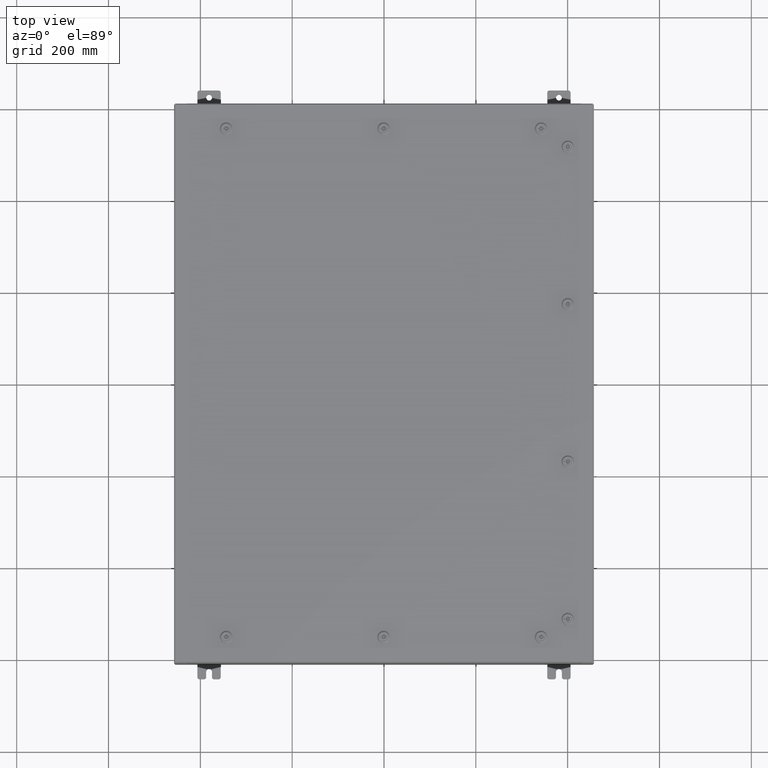
[diagram: clean part render]
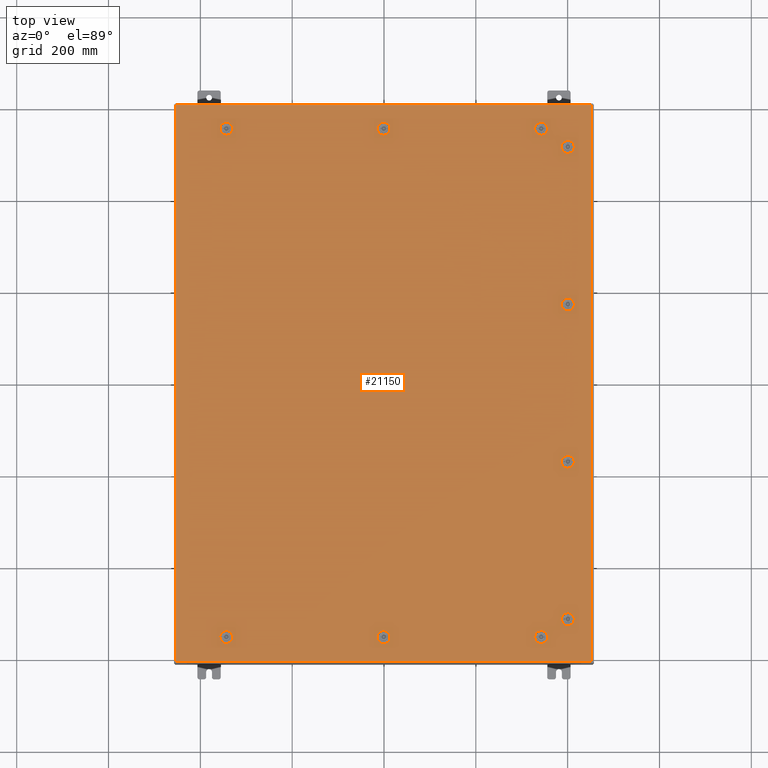
[diagram: same view with one face highlighted and labeled with its STEP entity id]
A machine part, top view. The second image highlights one B-rep face of the part: STEP entity #21150.
In plain terms, the highlighted planar face has unit normal (0, 0, -1).
Its self-contained STEP definition (entity closure, byte-faithful):
#76 = DIRECTION ( 'NONE',  ( 0.0000000000000000000, 1.000000000000000000, 6.982962677686235200E-015 ) ) ;
#179 = CIRCLE ( 'NONE', #52823, 0.4424999999999983400 ) ;
#253 = AXIS2_PLACEMENT_3D ( 'NONE', #58661, #26770, #64008 ) ;
#298 = ORIENTED_EDGE ( 'NONE', *, *, #25524, .T. ) ;
#329 = ORIENTED_EDGE ( 'NONE', *, *, #28271, .F. ) ;
#713 = ORIENTED_EDGE ( 'NONE', *, *, #7519, .T. ) ;
#864 = CARTESIAN_POINT ( 'NONE',  ( 15.39280000000001500, -6.949452375267905600, -4.852776656685395900E-014 ) ) ;
#948 = EDGE_CURVE ( 'NONE', #7597, #36455, #52452, .T. ) ;
#949 = LINE ( 'NONE', #3268, #52418 ) ;
#1003 = LINE ( 'NONE', #53656, #16736 ) ;
#1048 = EDGE_CURVE ( 'NONE', #16351, #64733, #47432, .T. ) ;
#1335 = EDGE_LOOP ( 'NONE', ( #44514, #61785, #37356, #9573, #53790 ) ) ;
#1723 = EDGE_CURVE ( 'NONE', #24085, #8715, #15004, .T. ) ;
#1784 = EDGE_CURVE ( 'NONE', #6978, #24288, #39185, .T. ) ;
#1798 = ORIENTED_EDGE ( 'NONE', *, *, #29962, .F. ) ;
#1932 = VERTEX_POINT ( 'NONE', #28588 ) ;
#1937 = ORIENTED_EDGE ( 'NONE', *, *, #21739, .F. ) ;
#1945 = VERTEX_POINT ( 'NONE', #49346 ) ;
#2062 = CARTESIAN_POINT ( 'NONE',  ( 13.30054762473209500, -22.18280000000000000, -1.620127811158077400E-013 ) ) ;
#2136 = AXIS2_PLACEMENT_3D ( 'NONE', #65143, #36237, #67361 ) ;
#2245 = EDGE_CURVE ( 'NONE', #23009, #48794, #1003, .T. ) ;
#2508 = VECTOR ( 'NONE', #39055, 39.37007874015748100 ) ;
#2575 = VECTOR ( 'NONE', #5492, 39.37007874015748100 ) ;
#2616 = EDGE_CURVE ( 'NONE', #38569, #2635, #30046, .T. ) ;
#2635 = VERTEX_POINT ( 'NONE', #65366 ) ;
#3051 = CIRCLE ( 'NONE', #43246, 0.4424999999999983400 ) ;
#3120 = CARTESIAN_POINT ( 'NONE',  ( 16.18280000000000700, 6.550547624732131700, 0.0000000000000000000 ) ) ;
#3268 = CARTESIAN_POINT ( 'NONE',  ( 15.39280000000001900, 6.949452375267904700, 0.0000000000000000000 ) ) ;
#3339 = ORIENTED_EDGE ( 'NONE', *, *, #948, .F. ) ;
#3489 = EDGE_CURVE ( 'NONE', #36455, #60819, #29978, .T. ) ;
#3668 = DIRECTION ( 'NONE',  ( -0.0000000000000000000, -6.982962677686266700E-015, 1.000000000000000000 ) ) ;
#4105 = CARTESIAN_POINT ( 'NONE',  ( 13.49999999999998600, 21.78780000000000400, -9.426999614876453700E-014 ) ) ;
#4744 = CIRCLE ( 'NONE', #37023, 0.4424999999999983400 ) ;
#4838 = ORIENTED_EDGE ( 'NONE', *, *, #24898, .F. ) ;
#4846 = DIRECTION ( 'NONE',  ( 0.0000000000000000000, 0.0000000000000000000, 1.000000000000000000 ) ) ;
#4857 = ORIENTED_EDGE ( 'NONE', *, *, #3489, .F. ) ;
#5093 = EDGE_CURVE ( 'NONE', #9836, #12946, #52297, .T. ) ;
#5108 = CARTESIAN_POINT ( 'NONE',  ( 1.529834876451987200E-014, -21.78780000000000400, -2.521317385144146900E-013 ) ) ;
#5274 = VECTOR ( 'NONE', #31224, 39.37007874015748100 ) ;
#5330 = CARTESIAN_POINT ( 'NONE',  ( 15.39280000000001400, 6.550547624732131700, 0.0000000000000000000 ) ) ;
#5441 = ORIENTED_EDGE ( 'NONE', *, *, #41263, .F. ) ;
#5492 = DIRECTION ( 'NONE',  ( 5.478697338139280000E-015, 1.000000000000000000, 6.982962677686382700E-015 ) ) ;
#5551 = AXIS2_PLACEMENT_3D ( 'NONE', #57510, #25614, #62870 ) ;
#5791 = DIRECTION ( 'NONE',  ( -0.0000000000000000000, -6.982962677686266700E-015, 1.000000000000000000 ) ) ;
#5930 = CARTESIAN_POINT ( 'NONE',  ( 16.18280000000001500, 20.05054762473213300, 0.0000000000000000000 ) ) ;
#6187 = DIRECTION ( 'NONE',  ( -1.000000000000000000, 1.095739467627832000E-014, 0.0000000000000000000 ) ) ;
#6355 = CARTESIAN_POINT ( 'NONE',  ( -13.49999999999998600, 21.78780000000000400, 0.0000000000000000000 ) ) ;
#6499 = EDGE_LOOP ( 'NONE', ( #3339, #20787, #46767, #16670, #4857 ) ) ;
#6670 = AXIS2_PLACEMENT_3D ( 'NONE', #36604, #5791, #42891 ) ;
#6718 = CARTESIAN_POINT ( 'NONE',  ( 1.529834876451987200E-014, 21.78780000000000400, 0.0000000000000000000 ) ) ;
#6978 = VERTEX_POINT ( 'NONE', #14735 ) ;
#6994 = DIRECTION ( 'NONE',  ( 1.000000000000000000, 0.0000000000000000000, 6.982962677686270700E-015 ) ) ;
#7014 = CARTESIAN_POINT ( 'NONE',  ( -0.1994523752678657400, -22.18280000000000700, 0.0000000000000000000 ) ) ;
#7197 = VERTEX_POINT ( 'NONE', #47909 ) ;
#7216 = CIRCLE ( 'NONE', #35235, 0.4424999999999983400 ) ;
#7394 = DIRECTION ( 'NONE',  ( 1.000000000000000000, -1.095739467627832000E-014, 6.982962677686152300E-015 ) ) ;
#7462 = CARTESIAN_POINT ( 'NONE',  ( -13.49999999999998600, 21.78780000000000400, 0.0000000000000000000 ) ) ;
#7519 = EDGE_CURVE ( 'NONE', #22306, #7864, #58091, .T. ) ;
#7556 = DIRECTION ( 'NONE',  ( 1.000000000000000000, -0.0000000000000000000, -0.0000000000000000000 ) ) ;
#7597 = VERTEX_POINT ( 'NONE', #7988 ) ;
#7644 = VECTOR ( 'NONE', #24654, 39.37007874015748100 ) ;
#7744 = CARTESIAN_POINT ( 'NONE',  ( -13.69945237526786900, 21.39280000000001200, 0.0000000000000000000 ) ) ;
#7864 = VERTEX_POINT ( 'NONE', #35990 ) ;
#7919 = AXIS2_PLACEMENT_3D ( 'NONE', #5108, #42208, #10431 ) ;
#7988 = CARTESIAN_POINT ( 'NONE',  ( 13.69945237526787100, -21.39280000000001200, 0.0000000000000000000 ) ) ;
#8014 = VERTEX_POINT ( 'NONE', #47362 ) ;
#8241 = VERTEX_POINT ( 'NONE', #37814 ) ;
#8419 = VERTEX_POINT ( 'NONE', #42948 ) ;
#8507 = VECTOR ( 'NONE', #26417, 39.37007874015748100 ) ;
#8596 = CARTESIAN_POINT ( 'NONE',  ( 0.1994523752679054600, 22.18280000000000000, 0.0000000000000000000 ) ) ;
#8715 = VERTEX_POINT ( 'NONE', #51902 ) ;
#8809 = EDGE_LOOP ( 'NONE', ( #30167, #17023, #63218, #57538, #11042 ) ) ;
#9018 = VECTOR ( 'NONE', #7556, 39.37007874015748100 ) ;
#9164 = VERTEX_POINT ( 'NONE', #12582 ) ;
#9410 = DIRECTION ( 'NONE',  ( -1.000000000000000000, 0.0000000000000000000, 6.982962677686270700E-015 ) ) ;
#9573 = ORIENTED_EDGE ( 'NONE', *, *, #1784, .F. ) ;
#9836 = VERTEX_POINT ( 'NONE', #43395 ) ;
#10057 = CIRCLE ( 'NONE', #6670, 0.4424999999999983400 ) ;
#10119 = CARTESIAN_POINT ( 'NONE',  ( 15.39280000000002200, 20.44945237526790300, 0.0000000000000000000 ) ) ;
#10317 = AXIS2_PLACEMENT_3D ( 'NONE', #56078, #24213, #61462 ) ;
#10431 = DIRECTION ( 'NONE',  ( 0.0000000000000000000, 1.000000000000000000, 6.982962677686270700E-015 ) ) ;
#10509 = ORIENTED_EDGE ( 'NONE', *, *, #22000, .F. ) ;
#10633 = ORIENTED_EDGE ( 'NONE', *, *, #43430, .F. ) ;
#10726 = EDGE_CURVE ( 'NONE', #8715, #43255, #47839, .T. ) ;
#10864 = FACE_BOUND ( 'NONE', #8809, .T. ) ;
#11042 = ORIENTED_EDGE ( 'NONE', *, *, #65388, .F. ) ;
#11293 = DIRECTION ( 'NONE',  ( 1.095739467627835000E-014, -1.000000000000000000, -6.982962677686269100E-015 ) ) ;
#11554 = VECTOR ( 'NONE', #61086, 39.37007874015748100 ) ;
#11691 = DIRECTION ( 'NONE',  ( 1.000000000000000000, 0.0000000000000000000, 0.0000000000000000000 ) ) ;
#11907 = ORIENTED_EDGE ( 'NONE', *, *, #2616, .F. ) ;
#12050 = DIRECTION ( 'NONE',  ( 1.000000000000000000, 0.0000000000000000000, 0.0000000000000000000 ) ) ;
#12147 = LINE ( 'NONE', #26566, #67008 ) ;
#12520 = ORIENTED_EDGE ( 'NONE', *, *, #34070, .F. ) ;
#12557 = FACE_BOUND ( 'NONE', #21965, .T. ) ;
#12582 = CARTESIAN_POINT ( 'NONE',  ( 13.69945237526786900, 21.39280000000001200, -9.566276464123603800E-014 ) ) ;
#12596 = VERTEX_POINT ( 'NONE', #7744 ) ;
#12801 = DIRECTION ( 'NONE',  ( 1.000000000000000000, 0.0000000000000000000, 0.0000000000000000000 ) ) ;
#12946 = VERTEX_POINT ( 'NONE', #26696 ) ;
#13134 = CARTESIAN_POINT ( 'NONE',  ( -17.84979999999999800, -23.84980000000000200, 1.946441695485787500E-015 ) ) ;
#13396 = CARTESIAN_POINT ( 'NONE',  ( 13.30054762473209500, -22.18280000000000000, -1.620127811158077400E-013 ) ) ;
#13700 = CARTESIAN_POINT ( 'NONE',  ( 13.30054762473210400, -21.39280000000001200, -1.564962406004356200E-013 ) ) ;
#13878 = VECTOR ( 'NONE', #56496, 39.37007874015748100 ) ;
#13960 = DIRECTION ( 'NONE',  ( -6.982962677686266700E-015, -6.982962677686266700E-015, 1.000000000000000000 ) ) ;
#13985 = CARTESIAN_POINT ( 'NONE',  ( -13.30054762473210400, -21.39280000000001500, -2.493734682567286900E-013 ) ) ;
#14735 = CARTESIAN_POINT ( 'NONE',  ( 0.4425000000000125500, 21.78780000000000400, 0.0000000000000000000 ) ) ;
#14827 = VECTOR ( 'NONE', #26430, 39.37007874015748100 ) ;
#15004 = CIRCLE ( 'NONE', #2136, 0.4424999999999961700 ) ;
#15093 = CIRCLE ( 'NONE', #54668, 0.4424999999999961700 ) ;
#15118 = DIRECTION ( 'NONE',  ( -1.000000000000000000, -1.095739467627832000E-014, 6.982962677686228800E-015 ) ) ;
#15500 = LINE ( 'NONE', #13985, #13878 ) ;
#15741 = VERTEX_POINT ( 'NONE', #3120 ) ;
#16060 = CIRCLE ( 'NONE', #41299, 0.4424999999999983400 ) ;
#16298 = LINE ( 'NONE', #62728, #19634 ) ;
#16351 = VERTEX_POINT ( 'NONE', #65547 ) ;
#16367 = EDGE_CURVE ( 'NONE', #51922, #38569, #17022, .T. ) ;
#16595 = CARTESIAN_POINT ( 'NONE',  ( 15.39280000000001500, -6.949452375267904700, -4.852776656685395200E-014 ) ) ;
#16670 = ORIENTED_EDGE ( 'NONE', *, *, #25973, .F. ) ;
#16736 = VECTOR ( 'NONE', #62559, 39.37007874015748100 ) ;
#17022 = CIRCLE ( 'NONE', #60952, 0.4424999999999983400 ) ;
#17023 = ORIENTED_EDGE ( 'NONE', *, *, #1723, .F. ) ;
#17488 = CARTESIAN_POINT ( 'NONE',  ( 15.78780000000000800, -6.750000000000014200, -4.713499807438240100E-014 ) ) ;
#17664 = DIRECTION ( 'NONE',  ( -0.0000000000000000000, -6.982962677686266700E-015, 1.000000000000000000 ) ) ;
#18625 = ORIENTED_EDGE ( 'NONE', *, *, #33846, .F. ) ;
#18626 = CARTESIAN_POINT ( 'NONE',  ( -13.05749999999998900, 21.78780000000000400, 0.0000000000000000000 ) ) ;
#18865 = DIRECTION ( 'NONE',  ( -0.0000000000000000000, -6.982962677686266700E-015, 1.000000000000000000 ) ) ;
#18898 = DIRECTION ( 'NONE',  ( 1.000000000000000000, 0.0000000000000000000, -6.982962677686306200E-015 ) ) ;
#19091 = VERTEX_POINT ( 'NONE', #61187 ) ;
#19374 = EDGE_CURVE ( 'NONE', #1945, #22306, #47540, .T. ) ;
#19587 = VECTOR ( 'NONE', #15118, 39.37007874015748100 ) ;
#19634 = VECTOR ( 'NONE', #30828, 39.37007874015748100 ) ;
#19858 = AXIS2_PLACEMENT_3D ( 'NONE', #43645, #62170, #68247 ) ;
#19861 = VERTEX_POINT ( 'NONE', #53741 ) ;
#20147 = CIRCLE ( 'NONE', #7919, 0.4424999999999983400 ) ;
#20235 = CARTESIAN_POINT ( 'NONE',  ( 15.78780000000000800, -6.750000000000014200, -4.713499807438240100E-014 ) ) ;
#20615 = CARTESIAN_POINT ( 'NONE',  ( 0.0000000000000000000, 0.0000000000000000000, 0.0000000000000000000 ) ) ;
#20787 = ORIENTED_EDGE ( 'NONE', *, *, #56002, .F. ) ;
#20930 = VERTEX_POINT ( 'NONE', #40833 ) ;
#21150 = ADVANCED_FACE ( 'NONE', ( #67401, #12557, #40742, #53224, #39080, #44084, #24940, #10864, #65764, #51561, #37414 ), #57836, .F. ) ;
#21222 = EDGE_CURVE ( 'NONE', #26521, #19861, #35747, .T. ) ;
#21444 = DIRECTION ( 'NONE',  ( 0.0000000000000000000, 1.000000000000000000, 0.0000000000000000000 ) ) ;
#21487 = CIRCLE ( 'NONE', #43739, 0.4424999999999961700 ) ;
#21628 = EDGE_CURVE ( 'NONE', #48794, #43379, #23393, .T. ) ;
#21739 = EDGE_CURVE ( 'NONE', #33700, #7197, #62491, .T. ) ;
#21965 = EDGE_LOOP ( 'NONE', ( #51328, #18625, #44511, #26653 ) ) ;
#22000 = EDGE_CURVE ( 'NONE', #7197, #19091, #27498, .T. ) ;
#22143 = CIRCLE ( 'NONE', #22769, 0.4424999999999983400 ) ;
#22306 = VERTEX_POINT ( 'NONE', #60231 ) ;
#22334 = ORIENTED_EDGE ( 'NONE', *, *, #48668, .F. ) ;
#22769 = AXIS2_PLACEMENT_3D ( 'NONE', #4105, #41193, #9410 ) ;
#22822 = DIRECTION ( 'NONE',  ( 0.0000000000000000000, 1.000000000000000000, 6.982962677686252500E-015 ) ) ;
#23009 = VERTEX_POINT ( 'NONE', #7014 ) ;
#23220 = VERTEX_POINT ( 'NONE', #45061 ) ;
#23393 = CIRCLE ( 'NONE', #10317, 0.4424999999999983400 ) ;
#23420 = ORIENTED_EDGE ( 'NONE', *, *, #48564, .F. ) ;
#24085 = VERTEX_POINT ( 'NONE', #44558 ) ;
#24208 = VECTOR ( 'NONE', #18898, 39.37007874015748100 ) ;
#24213 = DIRECTION ( 'NONE',  ( -0.0000000000000000000, -6.982962677686266700E-015, 1.000000000000000000 ) ) ;
#24288 = VERTEX_POINT ( 'NONE', #8596 ) ;
#24517 = EDGE_CURVE ( 'NONE', #50570, #26521, #21487, .T. ) ;
#24590 = AXIS2_PLACEMENT_3D ( 'NONE', #30504, #67718, #35842 ) ;
#24643 = DIRECTION ( 'NONE',  ( 0.0000000000000000000, 0.0000000000000000000, 1.000000000000000000 ) ) ;
#24654 = DIRECTION ( 'NONE',  ( 1.095739467627844000E-014, -1.000000000000000000, -6.982962677686384300E-015 ) ) ;
#24898 = EDGE_CURVE ( 'NONE', #12596, #37516, #25604, .T. ) ;
#24940 = FACE_BOUND ( 'NONE', #26439, .T. ) ;
#24975 = VERTEX_POINT ( 'NONE', #41201 ) ;
#25000 = EDGE_CURVE ( 'NONE', #9164, #24085, #50605, .T. ) ;
#25434 = VERTEX_POINT ( 'NONE', #39064 ) ;
#25524 = EDGE_CURVE ( 'NONE', #7864, #24975, #51384, .T. ) ;
#25552 = DIRECTION ( 'NONE',  ( 0.0000000000000000000, 1.000000000000000000, 6.982962677686269100E-015 ) ) ;
#25604 = LINE ( 'NONE', #55925, #11554 ) ;
#25614 = DIRECTION ( 'NONE',  ( 6.982962677686266700E-015, -0.0000000000000000000, 1.000000000000000000 ) ) ;
#25766 = VERTEX_POINT ( 'NONE', #56966 ) ;
#25865 = CARTESIAN_POINT ( 'NONE',  ( 16.18280000000000700, 6.949452375267900300, 0.0000000000000000000 ) ) ;
#25973 = EDGE_CURVE ( 'NONE', #60819, #16351, #61387, .T. ) ;
#26329 = VERTEX_POINT ( 'NONE', #10119 ) ;
#26407 = EDGE_CURVE ( 'NONE', #62455, #8241, #49646, .T. ) ;
#26417 = DIRECTION ( 'NONE',  ( -5.478697338139280000E-015, 1.000000000000000000, -0.0000000000000000000 ) ) ;
#26430 = DIRECTION ( 'NONE',  ( 1.000000000000000000, -0.0000000000000000000, -0.0000000000000000000 ) ) ;
#26439 = EDGE_LOOP ( 'NONE', ( #59244, #64451, #12520, #33581, #31004 ) ) ;
#26521 = VERTEX_POINT ( 'NONE', #5930 ) ;
#26566 = CARTESIAN_POINT ( 'NONE',  ( 17.84980000000000200, -23.84980000000000200, -2.048885995248197400E-016 ) ) ;
#26653 = ORIENTED_EDGE ( 'NONE', *, *, #30077, .F. ) ;
#26696 = CARTESIAN_POINT ( 'NONE',  ( 16.18280000000000700, -6.550547624732131700, -4.574222958191090100E-014 ) ) ;
#26770 = DIRECTION ( 'NONE',  ( 0.0000000000000000000, 0.0000000000000000000, 1.000000000000000000 ) ) ;
#26786 = CIRCLE ( 'NONE', #54561, 0.4424999999999983400 ) ;
#27369 = CARTESIAN_POINT ( 'NONE',  ( -13.49999999999998600, -21.78780000000000800, -2.521317385144146900E-013 ) ) ;
#27446 = DIRECTION ( 'NONE',  ( -1.000000000000000000, -0.0000000000000000000, -6.982962677686265900E-015 ) ) ;
#27475 = CARTESIAN_POINT ( 'NONE',  ( 15.78780000000001000, 6.750000000000014200, 0.0000000000000000000 ) ) ;
#27498 = CIRCLE ( 'NONE', #67318, 0.4424999999999983400 ) ;
#27753 = DIRECTION ( 'NONE',  ( 0.0000000000000000000, 0.0000000000000000000, 1.000000000000000000 ) ) ;
#28106 = ORIENTED_EDGE ( 'NONE', *, *, #68742, .F. ) ;
#28271 = EDGE_CURVE ( 'NONE', #25766, #68150, #949, .T. ) ;
#28588 = CARTESIAN_POINT ( 'NONE',  ( -13.05749999999999000, -21.78780000000000800, -2.521317385144146900E-013 ) ) ;
#28615 = CARTESIAN_POINT ( 'NONE',  ( -17.84979999999998100, 23.84980000000000900, -1.297627796990525000E-015 ) ) ;
#28975 = LINE ( 'NONE', #58324, #14827 ) ;
#29431 = AXIS2_PLACEMENT_3D ( 'NONE', #27369, #64618, #32725 ) ;
#29962 = EDGE_CURVE ( 'NONE', #36515, #8419, #30670, .T. ) ;
#29978 = CIRCLE ( 'NONE', #35930, 0.4424999999999961700 ) ;
#30046 = LINE ( 'NONE', #40992, #51636 ) ;
#30077 = EDGE_CURVE ( 'NONE', #53804, #9836, #43143, .T. ) ;
#30167 = ORIENTED_EDGE ( 'NONE', *, *, #10726, .F. ) ;
#30278 = CARTESIAN_POINT ( 'NONE',  ( 0.1994523752679067700, 22.18280000000000000, 0.0000000000000000000 ) ) ;
#30433 = CARTESIAN_POINT ( 'NONE',  ( 16.18280000000000400, -6.949452375267900300, -4.852776656685392100E-014 ) ) ;
#30504 = CARTESIAN_POINT ( 'NONE',  ( -13.49999999999998600, 21.78780000000000400, 0.0000000000000000000 ) ) ;
#30670 = LINE ( 'NONE', #33760, #2508 ) ;
#30739 = LINE ( 'NONE', #42592, #2575 ) ;
#30828 = DIRECTION ( 'NONE',  ( -1.000000000000000000, 0.0000000000000000000, 7.785697190086061500E-029 ) ) ;
#31004 = ORIENTED_EDGE ( 'NONE', *, *, #21628, .F. ) ;
#31095 = DIRECTION ( 'NONE',  ( -1.000000000000000000, -0.0000000000000000000, -0.0000000000000000000 ) ) ;
#31224 = DIRECTION ( 'NONE',  ( -5.478697338139235000E-015, 1.000000000000000000, -0.0000000000000000000 ) ) ;
#31287 = CARTESIAN_POINT ( 'NONE',  ( 15.39280000000002200, 20.44945237526790300, 0.0000000000000000000 ) ) ;
#31303 = DIRECTION ( 'NONE',  ( -1.000000000000000000, 0.0000000000000000000, -0.0000000000000000000 ) ) ;
#31827 = DIRECTION ( 'NONE',  ( -0.0000000000000000000, -6.982962677686266700E-015, 1.000000000000000000 ) ) ;
#31989 = EDGE_LOOP ( 'NONE', ( #39030, #51525, #35473, #10633 ) ) ;
#32016 = CIRCLE ( 'NONE', #45514, 0.4424999999999983400 ) ;
#32587 = CARTESIAN_POINT ( 'NONE',  ( 15.39280000000002200, -20.05054762473213300, 0.0000000000000000000 ) ) ;
#32725 = DIRECTION ( 'NONE',  ( 0.0000000000000000000, 1.000000000000000000, 6.982962677686270700E-015 ) ) ;
#32836 = DIRECTION ( 'NONE',  ( 1.000000000000000000, 0.0000000000000000000, 0.0000000000000000000 ) ) ;
#33581 = ORIENTED_EDGE ( 'NONE', *, *, #34735, .F. ) ;
#33700 = VERTEX_POINT ( 'NONE', #32587 ) ;
#33760 = CARTESIAN_POINT ( 'NONE',  ( -13.30054762473209500, -22.18280000000000400, -2.548900087721007400E-013 ) ) ;
#33846 = EDGE_CURVE ( 'NONE', #12946, #20930, #7216, .T. ) ;
#34070 = EDGE_CURVE ( 'NONE', #41841, #25434, #16298, .T. ) ;
#34350 = VECTOR ( 'NONE', #47542, 39.37007874015748100 ) ;
#34712 = CARTESIAN_POINT ( 'NONE',  ( 13.30054762473210200, 21.39280000000001200, -9.287722765629301200E-014 ) ) ;
#34735 = EDGE_CURVE ( 'NONE', #43379, #41841, #3051, .T. ) ;
#34845 = EDGE_LOOP ( 'NONE', ( #4838, #45868, #11907, #56742, #56837 ) ) ;
#34876 = EDGE_CURVE ( 'NONE', #24975, #1945, #12147, .T. ) ;
#35200 = EDGE_CURVE ( 'NONE', #68150, #15741, #32016, .T. ) ;
#35235 = AXIS2_PLACEMENT_3D ( 'NONE', #17488, #54669, #22822 ) ;
#35441 = CARTESIAN_POINT ( 'NONE',  ( 1.529834876451987200E-014, -21.78780000000000400, -2.521317385144146900E-013 ) ) ;
#35473 = ORIENTED_EDGE ( 'NONE', *, *, #53110, .F. ) ;
#35481 = LINE ( 'NONE', #16595, #62140 ) ;
#35747 = LINE ( 'NONE', #52925, #8507 ) ;
#35842 = DIRECTION ( 'NONE',  ( 1.000000000000000000, 0.0000000000000000000, 0.0000000000000000000 ) ) ;
#35930 = AXIS2_PLACEMENT_3D ( 'NONE', #51479, #52150, #51924 ) ;
#35990 = CARTESIAN_POINT ( 'NONE',  ( -17.84979999999999800, -23.84980000000000200, 1.946441695485787500E-015 ) ) ;
#35997 = DIRECTION ( 'NONE',  ( 5.478697338139235000E-015, 1.000000000000000000, 6.982962677686265900E-015 ) ) ;
#36237 = DIRECTION ( 'NONE',  ( 6.982962677686266700E-015, -0.0000000000000000000, 1.000000000000000000 ) ) ;
#36455 = VERTEX_POINT ( 'NONE', #13700 ) ;
#36515 = VERTEX_POINT ( 'NONE', #56653 ) ;
#36601 = CARTESIAN_POINT ( 'NONE',  ( 15.78780000000001500, 20.25000000000001400, 0.0000000000000000000 ) ) ;
#36604 = CARTESIAN_POINT ( 'NONE',  ( -13.49999999999998600, -21.78780000000000800, -2.521317385144146900E-013 ) ) ;
#37023 = AXIS2_PLACEMENT_3D ( 'NONE', #50680, #18865, #56042 ) ;
#37356 = ORIENTED_EDGE ( 'NONE', *, *, #47878, .F. ) ;
#37414 = FACE_OUTER_BOUND ( 'NONE', #46372, .T. ) ;
#37470 = CIRCLE ( 'NONE', #48414, 0.4424999999999961700 ) ;
#37516 = VERTEX_POINT ( 'NONE', #65535 ) ;
#37814 = CARTESIAN_POINT ( 'NONE',  ( -0.1994523752678689600, 21.39280000000001200, 0.0000000000000000000 ) ) ;
#38073 = AXIS2_PLACEMENT_3D ( 'NONE', #43935, #67048, #6994 ) ;
#38129 = ORIENTED_EDGE ( 'NONE', *, *, #35200, .F. ) ;
#38319 = LINE ( 'NONE', #34712, #24208 ) ;
#38569 = VERTEX_POINT ( 'NONE', #68147 ) ;
#39030 = ORIENTED_EDGE ( 'NONE', *, *, #21222, .F. ) ;
#39055 = DIRECTION ( 'NONE',  ( 1.000000000000000000, 1.095739467627832000E-014, 7.785697190085955000E-029 ) ) ;
#39064 = CARTESIAN_POINT ( 'NONE',  ( -0.1994523752678689600, -21.39280000000001200, -2.493734682567286400E-013 ) ) ;
#39080 = FACE_BOUND ( 'NONE', #6499, .T. ) ;
#39185 = CIRCLE ( 'NONE', #19858, 0.4424999999999972800 ) ;
#39822 = CARTESIAN_POINT ( 'NONE',  ( 0.1994523752678995500, 21.39280000000001200, 0.0000000000000000000 ) ) ;
#40471 = EDGE_CURVE ( 'NONE', #54711, #6978, #50058, .T. ) ;
#40712 = ORIENTED_EDGE ( 'NONE', *, *, #19374, .T. ) ;
#40742 = FACE_BOUND ( 'NONE', #31989, .T. ) ;
#40756 = DIRECTION ( 'NONE',  ( 0.0000000000000000000, 1.000000000000000000, 6.982962677686270700E-015 ) ) ;
#40833 = CARTESIAN_POINT ( 'NONE',  ( 15.39280000000001200, -6.550547624732131700, 0.0000000000000000000 ) ) ;
#40992 = CARTESIAN_POINT ( 'NONE',  ( -13.30054762473209400, 22.18280000000000000, 0.0000000000000000000 ) ) ;
#41193 = DIRECTION ( 'NONE',  ( 6.982962677686266700E-015, -0.0000000000000000000, 1.000000000000000000 ) ) ;
#41201 = CARTESIAN_POINT ( 'NONE',  ( 17.84980000000000200, -23.84980000000000200, -2.048885995248197400E-016 ) ) ;
#41263 = EDGE_CURVE ( 'NONE', #48999, #25766, #179, .T. ) ;
#41299 = AXIS2_PLACEMENT_3D ( 'NONE', #45750, #13960, #51096 ) ;
#41388 = CIRCLE ( 'NONE', #29431, 0.4424999999999983400 ) ;
#41568 = CARTESIAN_POINT ( 'NONE',  ( 13.30054762473209400, 22.18280000000000000, -9.287722765629296100E-014 ) ) ;
#41587 = EDGE_CURVE ( 'NONE', #55852, #9164, #38319, .T. ) ;
#41841 = VERTEX_POINT ( 'NONE', #42532 ) ;
#41944 = DIRECTION ( 'NONE',  ( 1.000000000000000000, 0.0000000000000000000, 0.0000000000000000000 ) ) ;
#42208 = DIRECTION ( 'NONE',  ( -0.0000000000000000000, -6.982962677686266700E-015, 1.000000000000000000 ) ) ;
#42532 = CARTESIAN_POINT ( 'NONE',  ( 0.1994523752678995500, -21.39280000000001200, -2.493734682567286900E-013 ) ) ;
#42592 = CARTESIAN_POINT ( 'NONE',  ( 16.18280000000001500, -20.44945237526789600, -1.427977627156185100E-013 ) ) ;
#42808 = EDGE_CURVE ( 'NONE', #2635, #12596, #15093, .T. ) ;
#42891 = DIRECTION ( 'NONE',  ( 0.0000000000000000000, 1.000000000000000000, 6.982962677686270700E-015 ) ) ;
#42948 = CARTESIAN_POINT ( 'NONE',  ( -13.30054762473209500, -22.18280000000000400, -2.548900087721007400E-013 ) ) ;
#43143 = CIRCLE ( 'NONE', #52395, 0.4424999999999972800 ) ;
#43246 = AXIS2_PLACEMENT_3D ( 'NONE', #35441, #3668, #40756 ) ;
#43255 = VERTEX_POINT ( 'NONE', #46130 ) ;
#43379 = VERTEX_POINT ( 'NONE', #64297 ) ;
#43395 = CARTESIAN_POINT ( 'NONE',  ( 16.18280000000000400, -6.949452375267900300, -4.852776656685392100E-014 ) ) ;
#43430 = EDGE_CURVE ( 'NONE', #19861, #26329, #37470, .T. ) ;
#43455 = DIRECTION ( 'NONE',  ( 0.0000000000000000000, 0.0000000000000000000, 1.000000000000000000 ) ) ;
#43585 = ORIENTED_EDGE ( 'NONE', *, *, #34876, .T. ) ;
#43645 = CARTESIAN_POINT ( 'NONE',  ( 1.529834876451987200E-014, 21.78780000000000400, 0.0000000000000000000 ) ) ;
#43739 = AXIS2_PLACEMENT_3D ( 'NONE', #36601, #4846, #41944 ) ;
#43802 = LINE ( 'NONE', #30278, #57998 ) ;
#43809 = DIRECTION ( 'NONE',  ( 0.0000000000000000000, 0.0000000000000000000, 1.000000000000000000 ) ) ;
#43881 = EDGE_CURVE ( 'NONE', #8419, #1932, #10057, .T. ) ;
#43935 = CARTESIAN_POINT ( 'NONE',  ( 13.49999999999998600, -21.78780000000000400, -1.578617423656501800E-013 ) ) ;
#44084 = FACE_BOUND ( 'NONE', #53780, .T. ) ;
#44255 = CARTESIAN_POINT ( 'NONE',  ( -13.30054762473210400, -21.39280000000001500, -2.493734682567286900E-013 ) ) ;
#44511 = ORIENTED_EDGE ( 'NONE', *, *, #5093, .F. ) ;
#44514 = ORIENTED_EDGE ( 'NONE', *, *, #63302, .F. ) ;
#44558 = CARTESIAN_POINT ( 'NONE',  ( 13.94249999999998300, 21.78780000000000400, -9.735995713364067600E-014 ) ) ;
#44565 = DIRECTION ( 'NONE',  ( 0.0000000000000000000, 0.0000000000000000000, 1.000000000000000000 ) ) ;
#44613 = EDGE_CURVE ( 'NONE', #19091, #8014, #30739, .T. ) ;
#44804 = AXIS2_PLACEMENT_3D ( 'NONE', #6718, #43809, #12050 ) ;
#45061 = CARTESIAN_POINT ( 'NONE',  ( -13.69945237526787100, -21.39280000000001500, -2.493734682567286400E-013 ) ) ;
#45514 = AXIS2_PLACEMENT_3D ( 'NONE', #65879, #24643, #61891 ) ;
#45592 = VECTOR ( 'NONE', #65852, 39.37007874015748100 ) ;
#45750 = CARTESIAN_POINT ( 'NONE',  ( 13.49999999999998600, -21.78780000000000400, -1.578617423656501800E-013 ) ) ;
#45812 = CARTESIAN_POINT ( 'NONE',  ( 15.39280000000002800, -20.44945237526790300, -1.427977627156185600E-013 ) ) ;
#45868 = ORIENTED_EDGE ( 'NONE', *, *, #42808, .F. ) ;
#45892 = VECTOR ( 'NONE', #31095, 39.37007874015748100 ) ;
#46130 = CARTESIAN_POINT ( 'NONE',  ( 13.30054762473209400, 22.18280000000000000, -9.287722765629296100E-014 ) ) ;
#46339 = CARTESIAN_POINT ( 'NONE',  ( 13.94249999999998500, -21.78780000000000400, -1.547717813807740000E-013 ) ) ;
#46372 = EDGE_LOOP ( 'NONE', ( #298, #43585, #40712, #713 ) ) ;
#46643 = EDGE_CURVE ( 'NONE', #1932, #68280, #41388, .T. ) ;
#46718 = LINE ( 'NONE', #31287, #34350 ) ;
#46767 = ORIENTED_EDGE ( 'NONE', *, *, #1048, .F. ) ;
#47141 = VECTOR ( 'NONE', #7394, 39.37007874015748100 ) ;
#47362 = CARTESIAN_POINT ( 'NONE',  ( 16.18280000000001800, -20.05054762473213300, -1.400122257306754800E-013 ) ) ;
#47432 = CIRCLE ( 'NONE', #38073, 0.4424999999999983400 ) ;
#47540 = LINE ( 'NONE', #62979, #45892 ) ;
#47542 = DIRECTION ( 'NONE',  ( -1.095739467627844000E-014, -1.000000000000000000, 0.0000000000000000000 ) ) ;
#47585 = LINE ( 'NONE', #25865, #5274 ) ;
#47839 = LINE ( 'NONE', #41568, #19587 ) ;
#47878 = EDGE_CURVE ( 'NONE', #24288, #62455, #43802, .T. ) ;
#47909 = CARTESIAN_POINT ( 'NONE',  ( 15.39280000000002800, -20.44945237526790300, -1.427977627156185100E-013 ) ) ;
#48414 = AXIS2_PLACEMENT_3D ( 'NONE', #59664, #27753, #65000 ) ;
#48564 = EDGE_CURVE ( 'NONE', #23220, #36515, #4744, .T. ) ;
#48668 = EDGE_CURVE ( 'NONE', #68280, #23220, #15500, .T. ) ;
#48794 = VERTEX_POINT ( 'NONE', #52022 ) ;
#48999 = VERTEX_POINT ( 'NONE', #58334 ) ;
#49346 = CARTESIAN_POINT ( 'NONE',  ( 17.84980000000000200, 23.84980000000000900, 1.946441695485787500E-015 ) ) ;
#49474 = CARTESIAN_POINT ( 'NONE',  ( 15.78780000000001800, -20.25000000000001400, -1.414049942231469700E-013 ) ) ;
#49646 = CIRCLE ( 'NONE', #253, 0.4424999999999969000 ) ;
#50058 = CIRCLE ( 'NONE', #44804, 0.4424999999999972800 ) ;
#50234 = CARTESIAN_POINT ( 'NONE',  ( 13.30054762473210200, 21.39280000000001200, -9.287722765629301200E-014 ) ) ;
#50570 = VERTEX_POINT ( 'NONE', #65819 ) ;
#50605 = CIRCLE ( 'NONE', #5551, 0.4424999999999961700 ) ;
#50680 = CARTESIAN_POINT ( 'NONE',  ( -13.49999999999998600, -21.78780000000000800, -2.521317385144146900E-013 ) ) ;
#50814 = VECTOR ( 'NONE', #27446, 39.37007874015748100 ) ;
#51096 = DIRECTION ( 'NONE',  ( 1.000000000000000000, 0.0000000000000000000, 6.982962677686270700E-015 ) ) ;
#51328 = ORIENTED_EDGE ( 'NONE', *, *, #64914, .F. ) ;
#51384 = LINE ( 'NONE', #13134, #9018 ) ;
#51479 = CARTESIAN_POINT ( 'NONE',  ( 13.49999999999998600, -21.78780000000000400, -1.578617423656501800E-013 ) ) ;
#51525 = ORIENTED_EDGE ( 'NONE', *, *, #24517, .F. ) ;
#51561 = FACE_BOUND ( 'NONE', #1335, .T. ) ;
#51636 = VECTOR ( 'NONE', #6187, 39.37007874015748100 ) ;
#51902 = CARTESIAN_POINT ( 'NONE',  ( 13.69945237526786700, 22.18280000000000400, 0.0000000000000000000 ) ) ;
#51922 = VERTEX_POINT ( 'NONE', #18626 ) ;
#51924 = DIRECTION ( 'NONE',  ( 1.000000000000000000, 0.0000000000000000000, 6.982962677686304600E-015 ) ) ;
#52022 = CARTESIAN_POINT ( 'NONE',  ( 0.1994523752679054600, -22.18280000000000000, -2.548900087721007400E-013 ) ) ;
#52150 = DIRECTION ( 'NONE',  ( -6.982962677686266700E-015, -6.982962677686266700E-015, 1.000000000000000000 ) ) ;
#52297 = LINE ( 'NONE', #30433, #64827 ) ;
#52395 = AXIS2_PLACEMENT_3D ( 'NONE', #20235, #57450, #25552 ) ;
#52418 = VECTOR ( 'NONE', #61345, 39.37007874015748100 ) ;
#52452 = LINE ( 'NONE', #63010, #50814 ) ;
#52823 = AXIS2_PLACEMENT_3D ( 'NONE', #27475, #64713, #32836 ) ;
#52925 = CARTESIAN_POINT ( 'NONE',  ( 16.18280000000001100, 20.44945237526789600, 0.0000000000000000000 ) ) ;
#53072 = EDGE_CURVE ( 'NONE', #25434, #23009, #20147, .T. ) ;
#53110 = EDGE_CURVE ( 'NONE', #26329, #50570, #46718, .T. ) ;
#53224 = FACE_BOUND ( 'NONE', #55001, .T. ) ;
#53656 = CARTESIAN_POINT ( 'NONE',  ( 0.1994523752679067700, -22.18280000000000000, -2.548900087721007400E-013 ) ) ;
#53741 = CARTESIAN_POINT ( 'NONE',  ( 16.18280000000001100, 20.44945237526789600, 0.0000000000000000000 ) ) ;
#53780 = EDGE_LOOP ( 'NONE', ( #1798, #23420, #22334, #56957, #61749 ) ) ;
#53790 = ORIENTED_EDGE ( 'NONE', *, *, #40471, .F. ) ;
#53804 = VERTEX_POINT ( 'NONE', #864 ) ;
#54217 = ORIENTED_EDGE ( 'NONE', *, *, #68485, .F. ) ;
#54561 = AXIS2_PLACEMENT_3D ( 'NONE', #49474, #17664, #54837 ) ;
#54668 = AXIS2_PLACEMENT_3D ( 'NONE', #6355, #43455, #11691 ) ;
#54669 = DIRECTION ( 'NONE',  ( -0.0000000000000000000, -6.982962677686266700E-015, 1.000000000000000000 ) ) ;
#54711 = VERTEX_POINT ( 'NONE', #39822 ) ;
#54837 = DIRECTION ( 'NONE',  ( 0.0000000000000000000, 1.000000000000000000, 6.982962677686235200E-015 ) ) ;
#55001 = EDGE_LOOP ( 'NONE', ( #54217, #38129, #329, #5441 ) ) ;
#55852 = VERTEX_POINT ( 'NONE', #50234 ) ;
#55925 = CARTESIAN_POINT ( 'NONE',  ( -13.30054762473210200, 21.39280000000001200, 0.0000000000000000000 ) ) ;
#56002 = EDGE_CURVE ( 'NONE', #64733, #7597, #16060, .T. ) ;
#56042 = DIRECTION ( 'NONE',  ( 0.0000000000000000000, 1.000000000000000000, 6.982962677686270700E-015 ) ) ;
#56078 = CARTESIAN_POINT ( 'NONE',  ( 1.529834876451987200E-014, -21.78780000000000400, -2.521317385144146900E-013 ) ) ;
#56496 = DIRECTION ( 'NONE',  ( -1.000000000000000000, 0.0000000000000000000, 7.785697190086082800E-029 ) ) ;
#56653 = CARTESIAN_POINT ( 'NONE',  ( -13.69945237526786900, -22.18280000000000700, 0.0000000000000000000 ) ) ;
#56742 = ORIENTED_EDGE ( 'NONE', *, *, #16367, .F. ) ;
#56837 = ORIENTED_EDGE ( 'NONE', *, *, #66787, .F. ) ;
#56957 = ORIENTED_EDGE ( 'NONE', *, *, #46643, .F. ) ;
#56966 = CARTESIAN_POINT ( 'NONE',  ( 15.39280000000001900, 6.949452375267904700, 0.0000000000000000000 ) ) ;
#57450 = DIRECTION ( 'NONE',  ( -0.0000000000000000000, -6.982962677686266700E-015, 1.000000000000000000 ) ) ;
#57510 = CARTESIAN_POINT ( 'NONE',  ( 13.49999999999998600, 21.78780000000000400, -9.426999614876453700E-014 ) ) ;
#57538 = ORIENTED_EDGE ( 'NONE', *, *, #41587, .F. ) ;
#57836 = PLANE ( 'NONE',  #59290 ) ;
#57998 = VECTOR ( 'NONE', #62386, 39.37007874015748100 ) ;
#58091 = LINE ( 'NONE', #28615, #45592 ) ;
#58324 = CARTESIAN_POINT ( 'NONE',  ( 0.1994523752678995500, 21.39280000000001200, 0.0000000000000000000 ) ) ;
#58334 = CARTESIAN_POINT ( 'NONE',  ( 16.18280000000000700, 6.949452375267900300, 0.0000000000000000000 ) ) ;
#58661 = CARTESIAN_POINT ( 'NONE',  ( 1.529834876451987200E-014, 21.78780000000000400, 0.0000000000000000000 ) ) ;
#59244 = ORIENTED_EDGE ( 'NONE', *, *, #2245, .F. ) ;
#59290 = AXIS2_PLACEMENT_3D ( 'NONE', #20615, #63186, #31303 ) ;
#59664 = CARTESIAN_POINT ( 'NONE',  ( 15.78780000000001500, 20.25000000000001400, 0.0000000000000000000 ) ) ;
#60231 = CARTESIAN_POINT ( 'NONE',  ( -17.84979999999998100, 23.84980000000000900, -1.297627796990525000E-015 ) ) ;
#60819 = VERTEX_POINT ( 'NONE', #13396 ) ;
#60952 = AXIS2_PLACEMENT_3D ( 'NONE', #7462, #44565, #12801 ) ;
#61086 = DIRECTION ( 'NONE',  ( 1.000000000000000000, -0.0000000000000000000, -0.0000000000000000000 ) ) ;
#61187 = CARTESIAN_POINT ( 'NONE',  ( 16.18280000000001500, -20.44945237526789600, -1.427977627156185100E-013 ) ) ;
#61345 = DIRECTION ( 'NONE',  ( -1.095739467627835000E-014, -1.000000000000000000, 0.0000000000000000000 ) ) ;
#61387 = LINE ( 'NONE', #2062, #47141 ) ;
#61462 = DIRECTION ( 'NONE',  ( 0.0000000000000000000, 1.000000000000000000, 6.982962677686270700E-015 ) ) ;
#61749 = ORIENTED_EDGE ( 'NONE', *, *, #43881, .F. ) ;
#61785 = ORIENTED_EDGE ( 'NONE', *, *, #26407, .F. ) ;
#61891 = DIRECTION ( 'NONE',  ( 1.000000000000000000, 0.0000000000000000000, 0.0000000000000000000 ) ) ;
#62009 = CIRCLE ( 'NONE', #24590, 0.4424999999999983400 ) ;
#62140 = VECTOR ( 'NONE', #11293, 39.37007874015748100 ) ;
#62170 = DIRECTION ( 'NONE',  ( 0.0000000000000000000, 0.0000000000000000000, 1.000000000000000000 ) ) ;
#62386 = DIRECTION ( 'NONE',  ( -1.000000000000000000, 1.095739467627836100E-014, 0.0000000000000000000 ) ) ;
#62455 = VERTEX_POINT ( 'NONE', #67704 ) ;
#62491 = LINE ( 'NONE', #45812, #7644 ) ;
#62559 = DIRECTION ( 'NONE',  ( 1.000000000000000000, 1.095739467627836100E-014, 7.785697190085984100E-029 ) ) ;
#62728 = CARTESIAN_POINT ( 'NONE',  ( 0.1994523752678995500, -21.39280000000001200, -2.493734682567286900E-013 ) ) ;
#62870 = DIRECTION ( 'NONE',  ( -1.000000000000000000, 0.0000000000000000000, 6.982962677686269100E-015 ) ) ;
#62979 = CARTESIAN_POINT ( 'NONE',  ( 17.84980000000000200, 23.84980000000000900, 1.946441695485787500E-015 ) ) ;
#63010 = CARTESIAN_POINT ( 'NONE',  ( 13.30054762473210400, -21.39280000000001200, -1.564962406004356200E-013 ) ) ;
#63186 = DIRECTION ( 'NONE',  ( 0.0000000000000000000, 0.0000000000000000000, -1.000000000000000000 ) ) ;
#63218 = ORIENTED_EDGE ( 'NONE', *, *, #25000, .F. ) ;
#63302 = EDGE_CURVE ( 'NONE', #8241, #54711, #28975, .T. ) ;
#63705 = CARTESIAN_POINT ( 'NONE',  ( 15.78780000000001800, -20.25000000000001400, -1.414049942231469700E-013 ) ) ;
#64008 = DIRECTION ( 'NONE',  ( 1.000000000000000000, 0.0000000000000000000, 0.0000000000000000000 ) ) ;
#64297 = CARTESIAN_POINT ( 'NONE',  ( 0.4425000000000125500, -21.78780000000000400, -2.521317385144146900E-013 ) ) ;
#64451 = ORIENTED_EDGE ( 'NONE', *, *, #53072, .F. ) ;
#64618 = DIRECTION ( 'NONE',  ( -0.0000000000000000000, -6.982962677686266700E-015, 1.000000000000000000 ) ) ;
#64713 = DIRECTION ( 'NONE',  ( 0.0000000000000000000, 0.0000000000000000000, 1.000000000000000000 ) ) ;
#64733 = VERTEX_POINT ( 'NONE', #46339 ) ;
#64827 = VECTOR ( 'NONE', #35997, 39.37007874015748100 ) ;
#64914 = EDGE_CURVE ( 'NONE', #20930, #53804, #35481, .T. ) ;
#65000 = DIRECTION ( 'NONE',  ( 1.000000000000000000, 0.0000000000000000000, 0.0000000000000000000 ) ) ;
#65143 = CARTESIAN_POINT ( 'NONE',  ( 13.49999999999998600, 21.78780000000000400, -9.426999614876453700E-014 ) ) ;
#65366 = CARTESIAN_POINT ( 'NONE',  ( -13.69945237526786700, 22.18280000000000400, 0.0000000000000000000 ) ) ;
#65388 = EDGE_CURVE ( 'NONE', #43255, #55852, #22143, .T. ) ;
#65535 = CARTESIAN_POINT ( 'NONE',  ( -13.30054762473210200, 21.39280000000001200, 0.0000000000000000000 ) ) ;
#65547 = CARTESIAN_POINT ( 'NONE',  ( 13.69945237526786900, -22.18280000000000400, -1.592272441308647100E-013 ) ) ;
#65764 = FACE_BOUND ( 'NONE', #34845, .T. ) ;
#65819 = CARTESIAN_POINT ( 'NONE',  ( 15.39280000000001900, 20.05054762473213300, 0.0000000000000000000 ) ) ;
#65852 = DIRECTION ( 'NONE',  ( 0.0000000000000000000, -1.000000000000000000, 0.0000000000000000000 ) ) ;
#65879 = CARTESIAN_POINT ( 'NONE',  ( 15.78780000000001000, 6.750000000000014200, 0.0000000000000000000 ) ) ;
#66787 = EDGE_CURVE ( 'NONE', #37516, #51922, #62009, .T. ) ;
#67008 = VECTOR ( 'NONE', #21444, 39.37007874015748100 ) ;
#67048 = DIRECTION ( 'NONE',  ( -6.982962677686266700E-015, -6.982962677686266700E-015, 1.000000000000000000 ) ) ;
#67318 = AXIS2_PLACEMENT_3D ( 'NONE', #63705, #31827, #76 ) ;
#67361 = DIRECTION ( 'NONE',  ( -1.000000000000000000, 0.0000000000000000000, 6.982962677686269100E-015 ) ) ;
#67401 = FACE_BOUND ( 'NONE', #68499, .T. ) ;
#67704 = CARTESIAN_POINT ( 'NONE',  ( -0.1994523752678657400, 22.18280000000000400, 0.0000000000000000000 ) ) ;
#67718 = DIRECTION ( 'NONE',  ( 0.0000000000000000000, 0.0000000000000000000, 1.000000000000000000 ) ) ;
#68147 = CARTESIAN_POINT ( 'NONE',  ( -13.30054762473209400, 22.18280000000000000, 0.0000000000000000000 ) ) ;
#68150 = VERTEX_POINT ( 'NONE', #5330 ) ;
#68247 = DIRECTION ( 'NONE',  ( 1.000000000000000000, 0.0000000000000000000, 0.0000000000000000000 ) ) ;
#68280 = VERTEX_POINT ( 'NONE', #44255 ) ;
#68485 = EDGE_CURVE ( 'NONE', #15741, #48999, #47585, .T. ) ;
#68499 = EDGE_LOOP ( 'NONE', ( #1937, #28106, #68825, #10509 ) ) ;
#68742 = EDGE_CURVE ( 'NONE', #8014, #33700, #26786, .T. ) ;
#68825 = ORIENTED_EDGE ( 'NONE', *, *, #44613, .F. ) ;